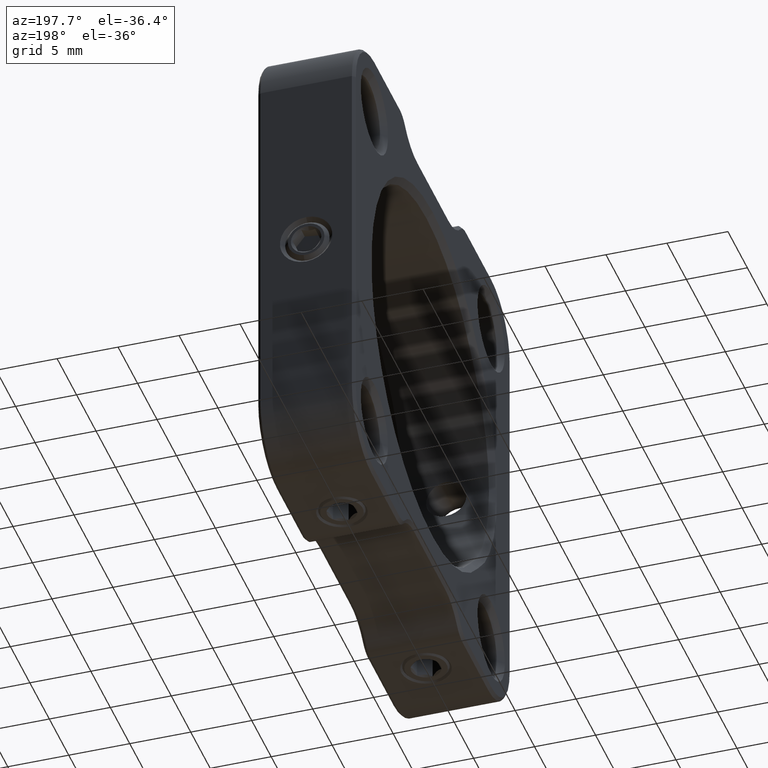
[diagram: clean part render]
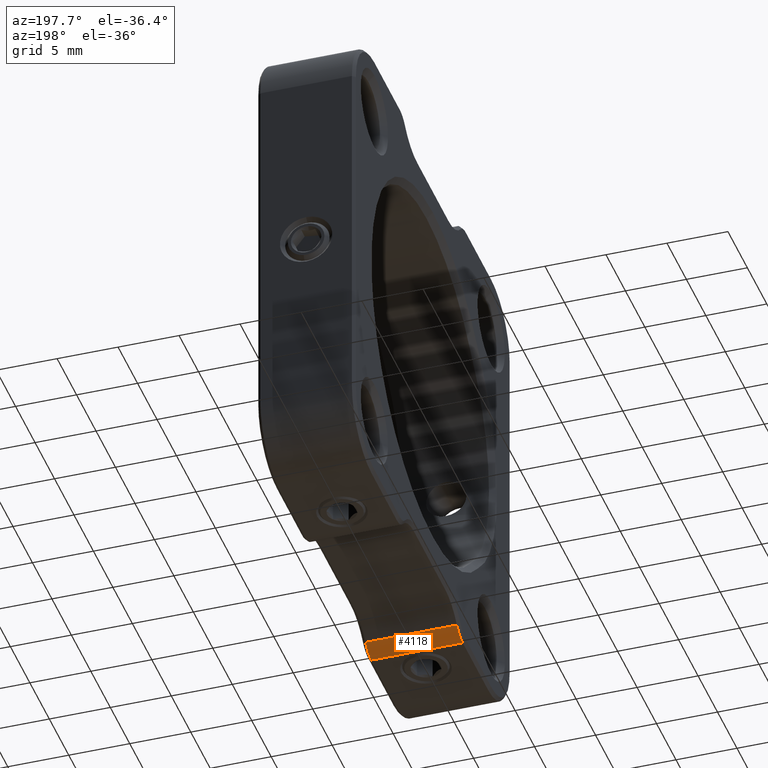
[diagram: same view with one face highlighted and labeled with its STEP entity id]
A machine part, auxiliary view. The second image highlights one B-rep face of the part: STEP entity #4118.
In plain terms, the highlighted cylindrical surface (edge-blend (fillet) strip) has radius 2 mm, axis along (-1, -0, -0).
Its self-contained STEP definition (entity closure, byte-faithful):
#148 = EDGE_CURVE ( 'NONE', #2819, #7082, #3172, .T. ) ;
#298 = DIRECTION ( 'NONE',  ( 0.000000000000000000, -8.673617379884027583E-16, -1.000000000000000000 ) ) ;
#436 = CIRCLE ( 'NONE', #9262, 2.000000000000001776 ) ;
#454 = VECTOR ( 'NONE', #7068, 1000.000000000000000 ) ;
#851 = CYLINDRICAL_SURFACE ( 'NONE', #8163, 2.000000000000001776 ) ;
#1065 = CARTESIAN_POINT ( 'NONE',  ( -10.70960063692994879, -6.362834731590475634, 20.00000000000000711 ) ) ;
#1239 = ORIENTED_EDGE ( 'NONE', *, *, #148, .T. ) ;
#1612 = DIRECTION ( 'NONE',  ( -1.000000000000000000, -0.000000000000000000, -0.000000000000000000 ) ) ;
#1840 = LINE ( 'NONE', #1065, #2626 ) ;
#1908 = DIRECTION ( 'NONE',  ( 1.000000000000000000, 0.000000000000000000, 0.000000000000000000 ) ) ;
#2040 = DIRECTION ( 'NONE',  ( 1.000000000000000000, 0.000000000000000000, 0.000000000000000000 ) ) ;
#2586 = VERTEX_POINT ( 'NONE', #7760 ) ;
#2626 = VECTOR ( 'NONE', #2040, 1000.000000000000000 ) ;
#2744 = EDGE_CURVE ( 'NONE', #2819, #2586, #9216, .T. ) ;
#2819 = VERTEX_POINT ( 'NONE', #6528 ) ;
#3172 = CIRCLE ( 'NONE', #7422, 2.000000000000001776 ) ;
#3195 = CARTESIAN_POINT ( 'NONE',  ( -10.95960063692994879, -6.362834731590475634, 20.00000000000000711 ) ) ;
#3200 = ORIENTED_EDGE ( 'NONE', *, *, #2744, .F. ) ;
#3662 = ORIENTED_EDGE ( 'NONE', *, *, #5181, .T. ) ;
#3840 = DIRECTION ( 'NONE',  ( 0.000000000000000000, 0.000000000000000000, 1.000000000000000000 ) ) ;
#4107 = DIRECTION ( 'NONE',  ( 0.000000000000000000, 0.000000000000000000, -1.000000000000000000 ) ) ;
#4118 = ADVANCED_FACE ( 'NONE', ( #5877 ), #851, .T. ) ;
#4533 = ORIENTED_EDGE ( 'NONE', *, *, #6224, .F. ) ;
#4536 = VERTEX_POINT ( 'NONE', #5860 ) ;
#5181 = EDGE_CURVE ( 'NONE', #4536, #2586, #436, .T. ) ;
#5399 = CARTESIAN_POINT ( 'NONE',  ( -10.95960063692994879, -6.362834731590475634, 22.00000000000001421 ) ) ;
#5860 = CARTESIAN_POINT ( 'NONE',  ( -18.45960063692994879, -6.362834731590475634, 20.00000000000000711 ) ) ;
#5877 = FACE_OUTER_BOUND ( 'NONE', #7206, .T. ) ;
#6224 = EDGE_CURVE ( 'NONE', #4536, #7082, #1840, .T. ) ;
#6300 = CARTESIAN_POINT ( 'NONE',  ( -10.70960063692994879, -4.872122746590615172, 20.66666666666668206 ) ) ;
#6528 = CARTESIAN_POINT ( 'NONE',  ( -10.95960063692994879, -4.872122746590615172, 20.66666666666668206 ) ) ;
#7068 = DIRECTION ( 'NONE',  ( -1.000000000000000000, -0.000000000000000000, -0.000000000000000000 ) ) ;
#7082 = VERTEX_POINT ( 'NONE', #3195 ) ;
#7206 = EDGE_LOOP ( 'NONE', ( #4533, #3662, #3200, #1239 ) ) ;
#7422 = AXIS2_PLACEMENT_3D ( 'NONE', #5399, #7667, #298 ) ;
#7667 = DIRECTION ( 'NONE',  ( -1.000000000000000000, 0.000000000000000000, 0.000000000000000000 ) ) ;
#7760 = CARTESIAN_POINT ( 'NONE',  ( -18.45960063692994879, -4.872122746590615172, 20.66666666666668206 ) ) ;
#8163 = AXIS2_PLACEMENT_3D ( 'NONE', #9025, #1612, #3840 ) ;
#9025 = CARTESIAN_POINT ( 'NONE',  ( -10.70960063692994879, -6.362834731590475634, 22.00000000000001421 ) ) ;
#9216 = LINE ( 'NONE', #6300, #454 ) ;
#9230 = CARTESIAN_POINT ( 'NONE',  ( -18.45960063692994879, -6.362834731590475634, 22.00000000000001421 ) ) ;
#9262 = AXIS2_PLACEMENT_3D ( 'NONE', #9230, #1908, #4107 ) ;